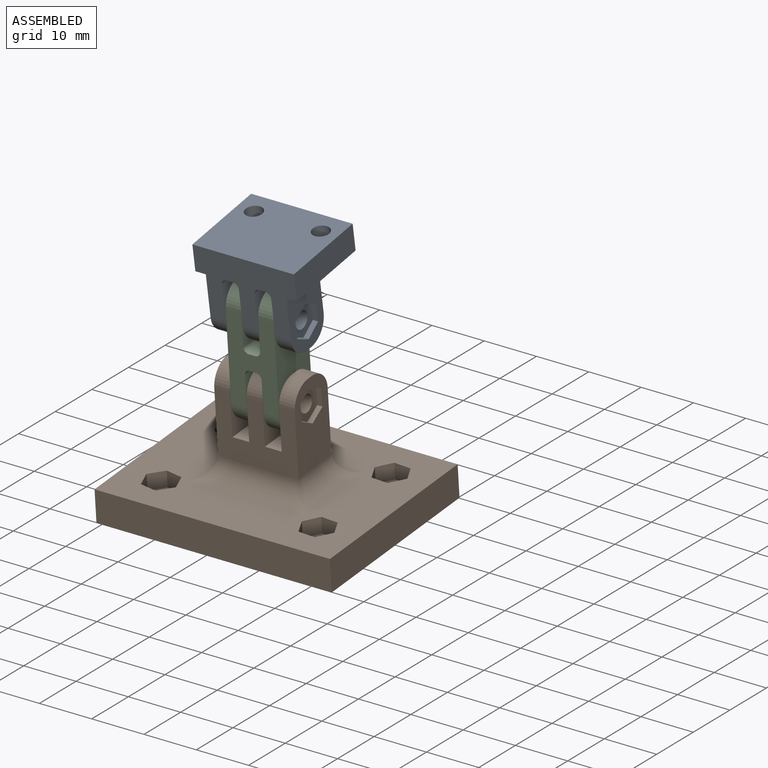
[diagram: assembled view]
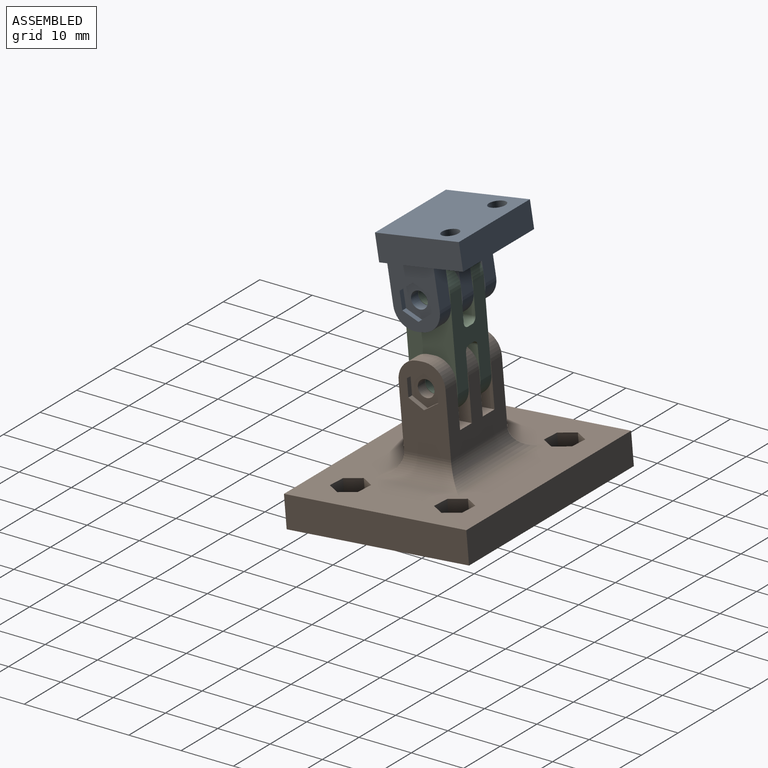
[diagram: assembled view, second angle]
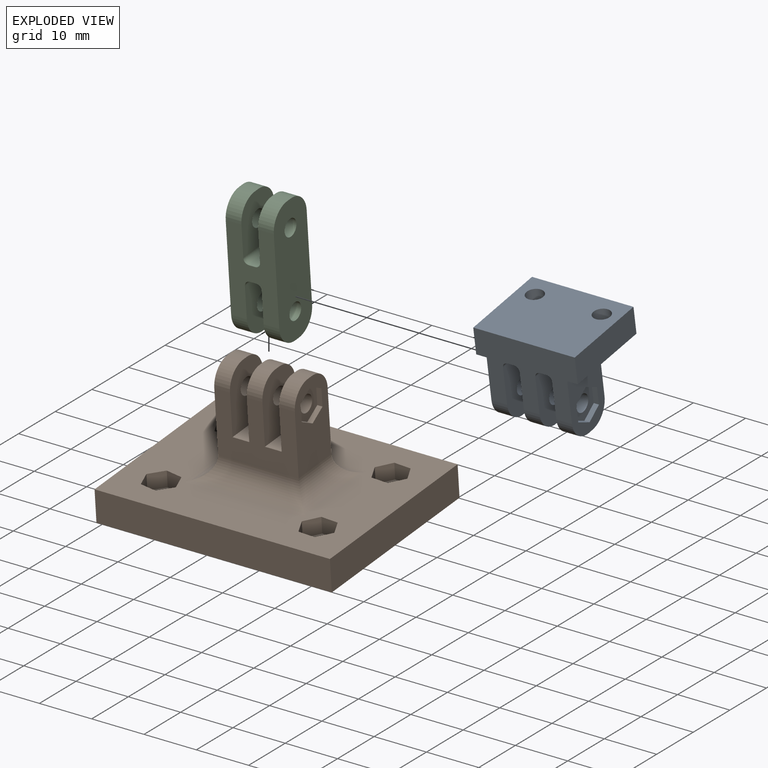
[diagram: exploded view]
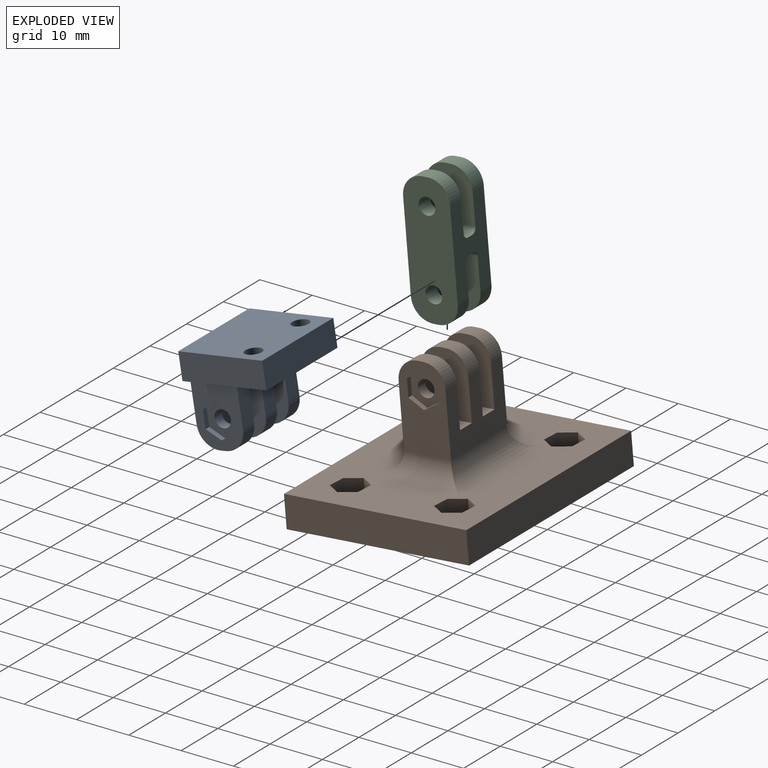
[diagram: exploded view, second angle]
ASSEMBLY  parts=3 mates=2
PART A: 40 faces, bbox 19.4x16.3x17 mm
  f0: plane 12x9mm, normal (1,0,0), area 73mm2, adj f1,f3,f18,f19,f20,f21,f22,f23
  f1: plane 19.4x16.27mm, normal (0,0,-1), area 182.5mm2, adj f0,f2,f3,f4,f5,f6,f7,f11
  f2: plane 16.27x5mm, normal (-1,0,0), area 81.3mm2, adj f1,f3,f6,f8
  f3: plane 19.4x13mm, normal (0,-1,0), area 169.9mm2, adj f0,f1,f2,f4,f8,f9,f10,f13
  f4: plane 16.27x5mm, normal (1,0,0), area 81.3mm2, adj f1,f3,f6,f8
  f5: cylinder r=1.6mm len=5mm, axis (0,0,1), area 50.3mm2, adj f1,f8
  f6: plane 19.4x5mm, normal (0,1,0), area 97mm2, adj f1,f2,f4,f8
  f7: cylinder r=1.6mm len=5mm, axis (0,0,1), area 50.3mm2, adj f1,f8
  f8: plane 19.4x16.27mm, normal (0,0,1), area 299.5mm2, adj f2,f3,f4,f5,f6,f7
  f9: plane 11x9mm, normal (-1,0,0), area 84.1mm2, adj f3,f11,f12,f29,f32,f33,f38
  f10: plane 11x9mm, normal (1,0,0), area 84.1mm2, adj f3,f11,f12,f29,f32,f33,f39
  f11: plane 8x5mm, normal (0,1,0), area 24.4mm2, adj f1,f9,f10,f33,f38,f39
  f12: plane 3x1mm, normal (0,0,-1), area 3mm2, adj f9,f10,f32,f33
  f13: plane 11x9mm, normal (1,0,0), area 84.1mm2, adj f3,f15,f16,f28,f34,f35,f37
  f14: plane 12x9mm, normal (-1,0,0), area 93.1mm2, adj f1,f3,f15,f16,f28,f34,f35
  f15: plane 8x4mm, normal (0,1,0), area 24.2mm2, adj f1,f13,f14,f34,f37
  f16: plane 3x1mm, normal (0,0,-1), area 3mm2, adj f13,f14,f34,f35
  f17: plane 11x9mm, normal (-1,0,0), area 84.1mm2, adj f3,f18,f19,f27,f30,f31,f36
  f18: plane 8x4mm, normal (0,1,0), area 24.2mm2, adj f0,f1,f17,f31,f36
  f19: plane 3x1mm, normal (0,0,-1), area 3mm2, adj f0,f17,f30,f31
  f20: plane 2.85x1.65mm, normal (0,0.5,0.87), area 3.3mm2, adj f0,f21,f25,f26
  f21: plane 2.85x1.65mm, normal (0,-0.5,0.87), area 3.3mm2, adj f0,f20,f22,f26
  f22: plane 3.29x1mm, normal (0,-1,0), area 3.3mm2, adj f0,f21,f23,f26
  f23: plane 2.85x1.65mm, normal (0,-0.5,-0.87), area 3.3mm2, adj f0,f22,f24,f26
  f24: plane 2.85x1.65mm, normal (0,0.5,-0.87), area 3.3mm2, adj f0,f23,f25,f26
  f25: plane 3.29x1mm, normal (0,1,0), area 3.3mm2, adj f0,f20,f24,f26
  f26: plane 6.58x5.7mm, normal (1,0,0), area 20.1mm2, adj f20,f21,f22,f23,f24,f25,f27
  f27: cylinder r=1.6mm len=3.2mm, axis (1,0,0), area 20.1mm2, adj f17,f26
  f28: cylinder r=1.6mm len=3.2mm, axis (1,0,0), area 30.2mm2, adj f13,f14
  f29: cylinder r=1.6mm len=3.2mm, axis (1,0,0), area 30.2mm2, adj f9,f10
  f30: cylinder r=4mm len=4mm, axis (-1,0,0), area 18.8mm2, adj f0,f3,f17,f19
  f31: cylinder r=4mm len=4mm, axis (1,0,0), area 18.8mm2, adj f0,f17,f18,f19
  f32: cylinder r=4mm len=4mm, axis (-1,0,0), area 18.8mm2, adj f3,f9,f10,f12
  f33: cylinder r=4mm len=4mm, axis (1,0,0), area 18.8mm2, adj f9,f10,f11,f12
  f34: cylinder r=4mm len=4mm, axis (1,0,0), area 18.8mm2, adj f13,f14,f15,f16
  f35: cylinder r=4mm len=4mm, axis (1,0,0), area 18.8mm2, adj f3,f13,f14,f16
  f36: cylinder r=1mm len=9mm, axis (0,-1,0), area 14.1mm2, adj f1,f3,f17,f18
  f37: cylinder r=1mm len=9mm, axis (0,1,0), area 14.1mm2, adj f1,f3,f13,f15
  f38: cylinder r=1mm len=9mm, axis (0,-1,0), area 14.1mm2, adj f1,f3,f9,f11
  f39: cylinder r=1mm len=9mm, axis (0,1,0), area 14.1mm2, adj f1,f3,f10,f11
PART B: 71 faces, bbox 45x35x26 mm
  f0: plane 16x9mm, normal (-1,0,0), area 109mm2, adj f42,f43,f51,f58,f59,f60,f61,f62
  f1: cylinder r=1.6mm len=3.2mm, axis (-1,0,0), area 20.1mm2, adj f50,f66
  f2: plane 9x3.2mm, normal (0,0,-1), area 28.8mm2, adj f42,f43,f45,f50
  f3: plane 9x3.2mm, normal (0,0,-1), area 28.8mm2, adj f42,f43,f46,f48
  f4: plane 45x35mm, normal (0,0,-1), area 1064.7mm2, adj f5,f6,f7,f8,f14,f15,f16,f17
  f5: plane 35x6mm, normal (1,0,0), area 210mm2, adj f4,f6,f8,f9
  f6: plane 45x6mm, normal (0,1,0), area 270mm2, adj f4,f5,f7,f9
  f7: plane 35x6mm, normal (-1,0,0), area 210mm2, adj f4,f6,f8,f9
  f8: plane 45x6mm, normal (0,-1,0), area 270mm2, adj f4,f5,f7,f9
  f9: plane 45x35mm, normal (0,0,1), area 1542.8mm2, adj f5,f6,f7,f8,f10,f11,f12,f13
  f10: cylinder r=1.6mm len=3.2mm, axis (0,0,1), area 30.2mm2, adj f9,f41
  f11: cylinder r=1.6mm len=3.2mm, axis (0,0,1), area 30.2mm2, adj f9,f34
  f12: cylinder r=1.6mm len=3.2mm, axis (0,0,1), area 30.2mm2, adj f9,f27
  f13: cylinder r=1.6mm len=3.2mm, axis (0,0,1), area 30.2mm2, adj f9,f20
  f14: plane 3x2.72mm, normal (-0.83,-0.56,0), area 9.9mm2, adj f4,f15,f19,f20
  f15: plane 3.28x3mm, normal (0.07,-1,0), area 9.9mm2, adj f4,f14,f16,f20
  f16: plane 3x2.96mm, normal (0.9,-0.44,0), area 9.9mm2, adj f4,f15,f17,f20
  f17: plane 3x2.72mm, normal (0.83,0.56,0), area 9.9mm2, adj f4,f16,f18,f20
  f18: plane 3.28x3mm, normal (-0.07,1,0), area 9.9mm2, adj f4,f17,f19,f20
  f19: plane 3x2.96mm, normal (-0.9,0.44,0), area 9.9mm2, adj f4,f14,f18,f20
  f20: plane 6.56x5.92mm, normal (0,0,-1), area 20.1mm2, adj f13,f14,f15,f16,f17,f18,f19
  f21: plane 3.23x3mm, normal (-0.18,0.98,0), area 9.9mm2, adj f4,f22,f26,f27
  f22: plane 3.1x3mm, normal (-0.94,0.33,0), area 9.9mm2, adj f4,f21,f23,f27
  f23: plane 3x2.5mm, normal (-0.76,-0.65,0), area 9.9mm2, adj f4,f22,f24,f27
  f24: plane 3.23x3mm, normal (0.18,-0.98,0), area 9.9mm2, adj f4,f23,f25,f27
  f25: plane 3.1x3mm, normal (0.94,-0.33,0), area 9.9mm2, adj f4,f24,f26,f27
  f26: plane 3x2.5mm, normal (0.76,0.65,0), area 9.9mm2, adj f4,f21,f25,f27
  f27: plane 6.47x6.21mm, normal (0,0,-1), area 20.1mm2, adj f12,f21,f22,f23,f24,f25,f26
  f28: plane 3x2.96mm, normal (0.9,-0.44,0), area 9.9mm2, adj f4,f29,f33,f34
  f29: plane 3x2.72mm, normal (0.83,0.56,0), area 9.9mm2, adj f4,f28,f30,f34
  f30: plane 3.28x3mm, normal (-0.07,1,0), area 9.9mm2, adj f4,f29,f31,f34
  f31: plane 3x2.96mm, normal (-0.9,0.44,0), area 9.9mm2, adj f4,f30,f32,f34
  f32: plane 3x2.72mm, normal (-0.83,-0.56,0), area 9.9mm2, adj f4,f31,f33,f34
  f33: plane 3.28x3mm, normal (0.07,-1,0), area 9.9mm2, adj f4,f28,f32,f34
  f34: plane 6.56x5.92mm, normal (0,0,-1), area 20.1mm2, adj f11,f28,f29,f30,f31,f32,f33
  f35: plane 3x2.72mm, normal (-0.83,-0.56,0), area 9.9mm2, adj f4,f36,f40,f41
  f36: plane 3.28x3mm, normal (0.07,-1,0), area 9.9mm2, adj f4,f35,f37,f41
  f37: plane 3x2.96mm, normal (0.9,-0.44,0), area 9.9mm2, adj f4,f36,f38,f41
  f38: plane 3x2.72mm, normal (0.83,0.56,0), area 9.9mm2, adj f4,f37,f39,f41
  f39: plane 3.28x3mm, normal (-0.07,1,0), area 9.9mm2, adj f4,f38,f40,f41
  f40: plane 3x2.96mm, normal (-0.9,0.44,0), area 9.9mm2, adj f4,f35,f39,f41
  f41: plane 6.56x5.92mm, normal (0,0,-1), area 20.1mm2, adj f10,f35,f36,f37,f38,f39,f40
  f42: plane 15.4x12mm, normal (0,1,0), area 133.6mm2, adj f0,f2,f3,f44,f45,f46,f48,f50
  f43: plane 15.4x12mm, normal (0,-1,0), area 133.6mm2, adj f0,f2,f3,f44,f45,f46,f48,f50
  f44: plane 16x9mm, normal (1,0,0), area 129.1mm2, adj f42,f43,f49,f52,f54,f55,f69
  f45: plane 12x9mm, normal (-1,0,0), area 93.1mm2, adj f2,f42,f43,f47,f53,f56,f57
  f46: plane 12x9mm, normal (1,0,0), area 93.1mm2, adj f3,f42,f43,f47,f53,f56,f57
  f47: plane 3x1mm, normal (0,0,-1), area 3mm2, adj f45,f46,f56,f57
  f48: plane 12x9mm, normal (-1,0,0), area 93.1mm2, adj f3,f42,f43,f49,f52,f54,f55
  f49: plane 3x1mm, normal (0,0,-1), area 3mm2, adj f44,f48,f54,f55
  f50: plane 12x9mm, normal (1,0,0), area 93.1mm2, adj f1,f2,f42,f43,f51,f58,f59
  f51: plane 3x1mm, normal (0,0,-1), area 3mm2, adj f0,f50,f58,f59
  f52: cylinder r=1.6mm len=3.2mm, axis (-1,0,0), area 30.2mm2, adj f44,f48
  f53: cylinder r=1.6mm len=3.2mm, axis (-1,0,0), area 30.2mm2, adj f45,f46
  f54: cylinder r=4mm len=4mm, axis (-1,0,0), area 18.8mm2, adj f43,f44,f48,f49
  f55: cylinder r=4mm len=4mm, axis (1,0,0), area 18.8mm2, adj f42,f44,f48,f49
  f56: cylinder r=4mm len=4mm, axis (-1,0,0), area 18.8mm2, adj f43,f45,f46,f47
  f57: cylinder r=4mm len=4mm, axis (1,0,0), area 18.8mm2, adj f42,f45,f46,f47
  f58: cylinder r=4mm len=4mm, axis (-1,0,0), area 18.8mm2, adj f0,f42,f50,f51
  f59: cylinder r=4mm len=4mm, axis (1,0,0), area 18.8mm2, adj f0,f43,f50,f51
  f60: plane 2.85x1.65mm, normal (0,-0.5,-0.87), area 3.3mm2, adj f0,f61,f65,f66
  f61: plane 3.29x1mm, normal (0,-1,0), area 3.3mm2, adj f0,f60,f62,f66
  f62: plane 2.85x1.65mm, normal (0,-0.5,0.87), area 3.3mm2, adj f0,f61,f63,f66
  f63: plane 2.85x1.65mm, normal (0,0.5,0.87), area 3.3mm2, adj f0,f62,f64,f66
  f64: plane 3.29x1mm, normal (0,1,0), area 3.3mm2, adj f0,f63,f65,f66
  f65: plane 2.85x1.65mm, normal (0,0.5,-0.87), area 3.3mm2, adj f0,f60,f64,f66
  f66: plane 6.58x5.7mm, normal (-1,0,0), area 20.1mm2, adj f1,f60,f61,f62,f63,f64,f65
  f67: cylinder r=4mm len=23.4mm, axis (1,0,0), area 115mm2, adj f4,f43,f68,f69
  f68: cylinder r=4mm len=17mm, axis (0,-1,0), area 74.8mm2, adj f0,f4,f67,f70
  f69: cylinder r=4mm len=17mm, axis (0,1,0), area 74.8mm2, adj f4,f44,f67,f70
  f70: cylinder r=4mm len=23.4mm, axis (-1,0,0), area 115mm2, adj f4,f42,f68,f69
PART C: 30 faces, bbox 9.2x9x25 mm
  f0: plane 17x9.2mm, normal (0,1,0), area 112.5mm2, adj f6,f7,f12,f13,f14,f15,f16,f17
  f1: plane 3x1mm, normal (0,0,-1), area 3mm2, adj f6,f15,f28,f29
  f2: cylinder r=1.6mm len=3.2mm, axis (1,0,0), area 30.2mm2, adj f6,f15
  f3: plane 3x1mm, normal (0,0,1), area 3mm2, adj f6,f12,f26,f27
  f4: cylinder r=1.6mm len=3.2mm, axis (1,0,0), area 30.2mm2, adj f6,f12
  f5: plane 17x9.2mm, normal (0,-1,0), area 112.5mm2, adj f6,f7,f12,f13,f14,f15,f16,f17
  f6: plane 25x9mm, normal (1,0,0), area 195.2mm2, adj f0,f1,f2,f3,f4,f5,f26,f27
  f7: plane 25x9mm, normal (-1,0,0), area 195.2mm2, adj f0,f5,f8,f9,f10,f11,f22,f23
  f8: plane 3x1mm, normal (0,0,-1), area 3mm2, adj f7,f16,f22,f23
  f9: plane 3x1mm, normal (0,0,1), area 3mm2, adj f7,f13,f24,f25
  f10: cylinder r=1.6mm len=3.2mm, axis (1,0,0), area 30.2mm2, adj f7,f13
  f11: cylinder r=1.6mm len=3.2mm, axis (1,0,0), area 30.2mm2, adj f7,f16
  f12: plane 10x9mm, normal (-1,0,0), area 75.1mm2, adj f0,f3,f4,f5,f21,f26,f27
  f13: plane 10x9mm, normal (1,0,0), area 75.1mm2, adj f0,f5,f9,f10,f20,f24,f25
  f14: plane 9x1.2mm, normal (0,0,1), area 10.8mm2, adj f0,f5,f20,f21
  f15: plane 10x9mm, normal (-1,0,0), area 75.1mm2, adj f0,f1,f2,f5,f19,f28,f29
  f16: plane 10x9mm, normal (1,0,0), area 75.1mm2, adj f0,f5,f8,f11,f18,f22,f23
  f17: plane 9x1.2mm, normal (0,0,-1), area 10.8mm2, adj f0,f5,f18,f19
  f18: cylinder r=1mm len=9mm, axis (0,1,0), area 14.1mm2, adj f0,f5,f16,f17
  f19: cylinder r=1mm len=9mm, axis (0,-1,0), area 14.1mm2, adj f0,f5,f15,f17
  f20: cylinder r=1mm len=9mm, axis (0,-1,0), area 14.1mm2, adj f0,f5,f13,f14
  f21: cylinder r=1mm len=9mm, axis (0,1,0), area 14.1mm2, adj f0,f5,f12,f14
  f22: cylinder r=4mm len=4mm, axis (1,0,0), area 18.8mm2, adj f0,f7,f8,f16
  f23: cylinder r=4mm len=4mm, axis (-1,0,0), area 18.8mm2, adj f5,f7,f8,f16
  f24: cylinder r=4mm len=4mm, axis (1,0,0), area 18.8mm2, adj f5,f7,f9,f13
  f25: cylinder r=4mm len=4mm, axis (-1,0,0), area 18.8mm2, adj f0,f7,f9,f13
  f26: cylinder r=4mm len=4mm, axis (1,0,0), area 18.8mm2, adj f3,f5,f6,f12
  f27: cylinder r=4mm len=4mm, axis (-1,0,0), area 18.8mm2, adj f0,f3,f6,f12
  f28: cylinder r=4mm len=4mm, axis (-1,0,0), area 18.8mm2, adj f1,f5,f6,f15
  f29: cylinder r=4mm len=4mm, axis (1,0,0), area 18.8mm2, adj f0,f1,f6,f15
PLACE A rot(axis=(1,0,0),9.3deg) t=(11,-42.65,-1.85)mm
PLACE B rot(axis=(0,-1,-0.04),180deg) t=(-7.14,4.83,-36.52)mm
PLACE C rot(axis=(1,0,0),5deg) t=(-32.18,-49.41,-6.14)mm
MATE revolute B.f1 <-> C.f2  axis (1,0,0) through (-5.64,3.52,-21.58)mm
MATE revolute A.f27 <-> C.f4  axis (1,0,0) through (-5.64,2.21,-6.64)mm
